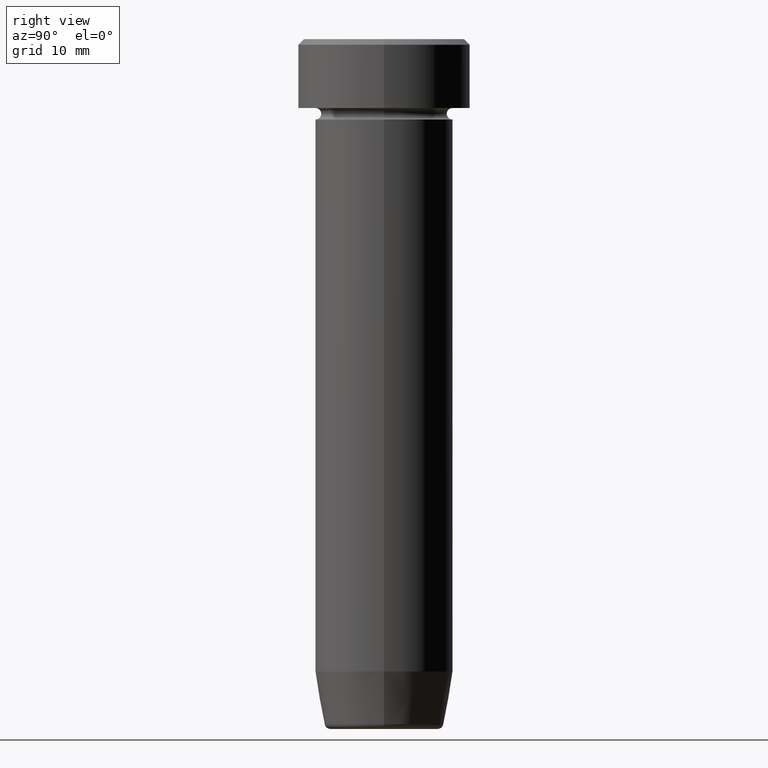
[diagram: clean part render]
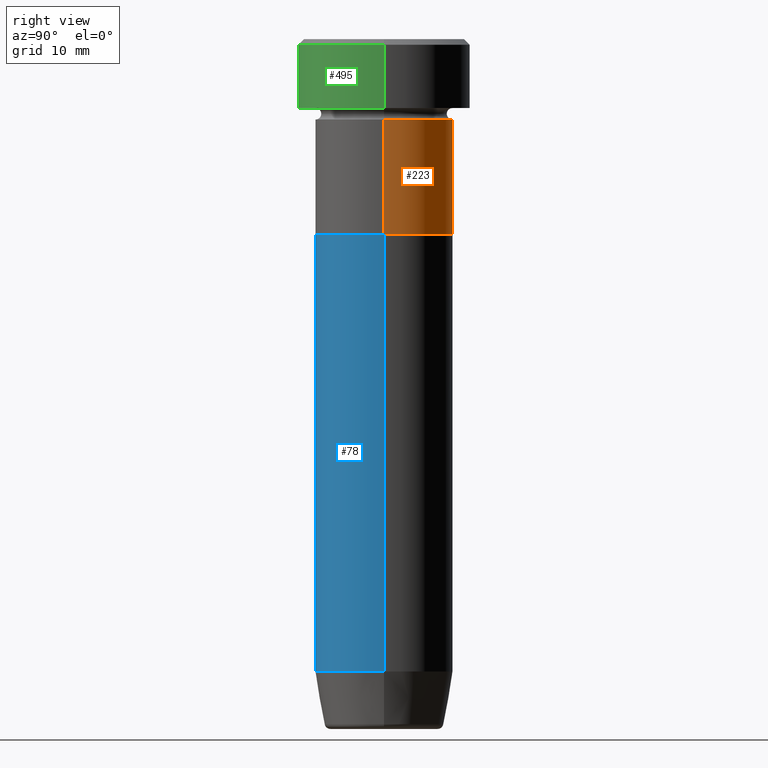
[diagram: same view with three faces highlighted in distinct colors, each labeled with its STEP entity id]
A machine part, right view with three faces highlighted in distinct colors.
Their STEP definitions:

[orange] entity #223 — the highlighted cylindrical surface (partial cylindrical patch) has radius 6 mm, axis along (-0, -0, 1).
#6 = VERTEX_POINT ( 'NONE', #372 ) ;
#12 = CIRCLE ( 'NONE', #39, 6.000000000000000000 ) ;
#18 = ORIENTED_EDGE ( 'NONE', *, *, #215, .F. ) ;
#26 = CYLINDRICAL_SURFACE ( 'NONE', #354, 6.000000000000000000 ) ;
#38 = VECTOR ( 'NONE', #585, 1000.000000000000000 ) ;
#39 = AXIS2_PLACEMENT_3D ( 'NONE', #559, #138, #599 ) ;
#66 = LINE ( 'NONE', #119, #38 ) ;
#74 = FACE_OUTER_BOUND ( 'NONE', #439, .T. ) ;
#92 = VECTOR ( 'NONE', #428, 1000.000000000000000 ) ;
#97 = ORIENTED_EDGE ( 'NONE', *, *, #390, .F. ) ;
#111 = EDGE_CURVE ( 'NONE', #6, #210, #373, .T. ) ;
#119 = CARTESIAN_POINT ( 'NONE',  ( 6.000000000000000000, 0.000000000000000000, 0.000000000000000000 ) ) ;
#134 = CARTESIAN_POINT ( 'NONE',  ( 0.000000000000000000, 0.000000000000000000, -7.000000000000000000 ) ) ;
#138 = DIRECTION ( 'NONE',  ( -0.000000000000000000, -0.000000000000000000, 1.000000000000000000 ) ) ;
#159 = VERTEX_POINT ( 'NONE', #341 ) ;
#210 = VERTEX_POINT ( 'NONE', #369 ) ;
#215 = EDGE_CURVE ( 'NONE', #536, #159, #66, .T. ) ;
#223 = ADVANCED_FACE ( 'NONE', ( #74 ), #26, .T. ) ;
#233 = CARTESIAN_POINT ( 'NONE',  ( 6.000000000000000000, 0.000000000000000000, -17.00000000000000000 ) ) ;
#261 = DIRECTION ( 'NONE',  ( 1.000000000000000000, 0.000000000000000000, 0.000000000000000000 ) ) ;
#341 = CARTESIAN_POINT ( 'NONE',  ( 6.000000000000000000, 0.000000000000000000, -7.000000000000000000 ) ) ;
#352 = EDGE_CURVE ( 'NONE', #536, #6, #12, .T. ) ;
#354 = AXIS2_PLACEMENT_3D ( 'NONE', #411, #577, #363 ) ;
#363 = DIRECTION ( 'NONE',  ( 1.000000000000000000, 0.000000000000000000, 0.000000000000000000 ) ) ;
#369 = CARTESIAN_POINT ( 'NONE',  ( -6.000000000000000000, 7.347880794884119736E-16, -7.000000000000000000 ) ) ;
#372 = CARTESIAN_POINT ( 'NONE',  ( -6.000000000000000000, 7.347880794884119736E-16, -17.00000000000000000 ) ) ;
#373 = LINE ( 'NONE', #504, #92 ) ;
#382 = CIRCLE ( 'NONE', #395, 6.000000000000000000 ) ;
#390 = EDGE_CURVE ( 'NONE', #159, #210, #382, .T. ) ;
#395 = AXIS2_PLACEMENT_3D ( 'NONE', #134, #540, #261 ) ;
#411 = CARTESIAN_POINT ( 'NONE',  ( 0.000000000000000000, 0.000000000000000000, 0.000000000000000000 ) ) ;
#412 = ORIENTED_EDGE ( 'NONE', *, *, #111, .T. ) ;
#428 = DIRECTION ( 'NONE',  ( -0.000000000000000000, -0.000000000000000000, 1.000000000000000000 ) ) ;
#439 = EDGE_LOOP ( 'NONE', ( #572, #412, #97, #18 ) ) ;
#504 = CARTESIAN_POINT ( 'NONE',  ( -6.000000000000000000, 7.347880794884119736E-16, 0.000000000000000000 ) ) ;
#536 = VERTEX_POINT ( 'NONE', #233 ) ;
#540 = DIRECTION ( 'NONE',  ( -0.000000000000000000, -0.000000000000000000, 1.000000000000000000 ) ) ;
#559 = CARTESIAN_POINT ( 'NONE',  ( 0.000000000000000000, 0.000000000000000000, -17.00000000000000000 ) ) ;
#572 = ORIENTED_EDGE ( 'NONE', *, *, #352, .T. ) ;
#577 = DIRECTION ( 'NONE',  ( -0.000000000000000000, -0.000000000000000000, 1.000000000000000000 ) ) ;
#585 = DIRECTION ( 'NONE',  ( -0.000000000000000000, -0.000000000000000000, 1.000000000000000000 ) ) ;
#599 = DIRECTION ( 'NONE',  ( 1.000000000000000000, 0.000000000000000000, 0.000000000000000000 ) ) ;

[blue] entity #78 — the highlighted cylindrical surface (partial cylindrical patch) has radius 6 mm, axis along (-0, -0, 1).
#3 = DIRECTION ( 'NONE',  ( -0.000000000000000000, -0.000000000000000000, 1.000000000000000000 ) ) ;
#17 = VERTEX_POINT ( 'NONE', #58 ) ;
#24 = VECTOR ( 'NONE', #115, 1000.000000000000000 ) ;
#58 = CARTESIAN_POINT ( 'NONE',  ( 6.000000000000000000, 0.000000000000000000, -17.00000000000000000 ) ) ;
#60 = EDGE_CURVE ( 'NONE', #339, #17, #590, .T. ) ;
#78 = ADVANCED_FACE ( 'NONE', ( #552 ), #132, .T. ) ;
#95 = ORIENTED_EDGE ( 'NONE', *, *, #60, .F. ) ;
#115 = DIRECTION ( 'NONE',  ( -0.000000000000000000, -0.000000000000000000, 1.000000000000000000 ) ) ;
#116 = EDGE_LOOP ( 'NONE', ( #334, #192, #408, #95 ) ) ;
#132 = CYLINDRICAL_SURFACE ( 'NONE', #538, 6.000000000000000000 ) ;
#133 = CARTESIAN_POINT ( 'NONE',  ( -6.000000000000000000, 7.347880794884119736E-16, -17.00000000000000000 ) ) ;
#145 = CARTESIAN_POINT ( 'NONE',  ( 6.000000000000000000, 0.000000000000000000, -55.00000000000000000 ) ) ;
#154 = VERTEX_POINT ( 'NONE', #145 ) ;
#171 = EDGE_CURVE ( 'NONE', #290, #154, #548, .T. ) ;
#174 = CARTESIAN_POINT ( 'NONE',  ( 0.000000000000000000, 0.000000000000000000, -17.00000000000000000 ) ) ;
#192 = ORIENTED_EDGE ( 'NONE', *, *, #171, .T. ) ;
#240 = CARTESIAN_POINT ( 'NONE',  ( 0.000000000000000000, 0.000000000000000000, -55.00000000000000000 ) ) ;
#266 = DIRECTION ( 'NONE',  ( -0.000000000000000000, -0.000000000000000000, 1.000000000000000000 ) ) ;
#280 = CARTESIAN_POINT ( 'NONE',  ( 0.000000000000000000, 0.000000000000000000, 0.000000000000000000 ) ) ;
#290 = VERTEX_POINT ( 'NONE', #314 ) ;
#314 = CARTESIAN_POINT ( 'NONE',  ( -6.000000000000000000, 7.347880794884119736E-16, -55.00000000000000000 ) ) ;
#317 = AXIS2_PLACEMENT_3D ( 'NONE', #240, #597, #377 ) ;
#334 = ORIENTED_EDGE ( 'NONE', *, *, #424, .F. ) ;
#339 = VERTEX_POINT ( 'NONE', #133 ) ;
#375 = DIRECTION ( 'NONE',  ( 1.000000000000000000, 0.000000000000000000, 0.000000000000000000 ) ) ;
#377 = DIRECTION ( 'NONE',  ( 1.000000000000000000, 0.000000000000000000, 0.000000000000000000 ) ) ;
#386 = LINE ( 'NONE', #516, #433 ) ;
#394 = DIRECTION ( 'NONE',  ( 1.000000000000000000, 0.000000000000000000, 0.000000000000000000 ) ) ;
#408 = ORIENTED_EDGE ( 'NONE', *, *, #490, .T. ) ;
#424 = EDGE_CURVE ( 'NONE', #290, #339, #386, .T. ) ;
#429 = DIRECTION ( 'NONE',  ( -0.000000000000000000, -0.000000000000000000, 1.000000000000000000 ) ) ;
#433 = VECTOR ( 'NONE', #429, 1000.000000000000000 ) ;
#490 = EDGE_CURVE ( 'NONE', #154, #17, #537, .T. ) ;
#516 = CARTESIAN_POINT ( 'NONE',  ( -6.000000000000000000, 7.347880794884119736E-16, 0.000000000000000000 ) ) ;
#537 = LINE ( 'NONE', #576, #24 ) ;
#538 = AXIS2_PLACEMENT_3D ( 'NONE', #280, #3, #394 ) ;
#548 = CIRCLE ( 'NONE', #317, 6.000000000000000000 ) ;
#552 = FACE_OUTER_BOUND ( 'NONE', #116, .T. ) ;
#567 = AXIS2_PLACEMENT_3D ( 'NONE', #174, #266, #375 ) ;
#576 = CARTESIAN_POINT ( 'NONE',  ( 6.000000000000000000, 0.000000000000000000, 0.000000000000000000 ) ) ;
#590 = CIRCLE ( 'NONE', #567, 6.000000000000000000 ) ;
#597 = DIRECTION ( 'NONE',  ( -0.000000000000000000, -0.000000000000000000, 1.000000000000000000 ) ) ;

[green] entity #495 — the highlighted cylindrical surface (partial cylindrical patch) has radius 7.5 mm, axis along (-0, -0, 1).
#2 = EDGE_LOOP ( 'NONE', ( #96, #515, #476, #63 ) ) ;
#7 = VERTEX_POINT ( 'NONE', #182 ) ;
#8 = EDGE_CURVE ( 'NONE', #565, #295, #83, .T. ) ;
#35 = DIRECTION ( 'NONE',  ( -0.000000000000000000, -0.000000000000000000, 1.000000000000000000 ) ) ;
#42 = CARTESIAN_POINT ( 'NONE',  ( -7.500000000000000000, 9.184850993605147944E-16, 0.000000000000000000 ) ) ;
#48 = EDGE_CURVE ( 'NONE', #565, #172, #520, .T. ) ;
#62 = AXIS2_PLACEMENT_3D ( 'NONE', #349, #162, #528 ) ;
#63 = ORIENTED_EDGE ( 'NONE', *, *, #148, .T. ) ;
#67 = CARTESIAN_POINT ( 'NONE',  ( 0.000000000000000000, 0.000000000000000000, -0.4999999999999987232 ) ) ;
#83 = LINE ( 'NONE', #42, #157 ) ;
#96 = ORIENTED_EDGE ( 'NONE', *, *, #8, .F. ) ;
#124 = DIRECTION ( 'NONE',  ( 1.000000000000000000, 0.000000000000000000, 0.000000000000000000 ) ) ;
#148 = EDGE_CURVE ( 'NONE', #7, #295, #329, .T. ) ;
#151 = CYLINDRICAL_SURFACE ( 'NONE', #62, 7.500000000000000000 ) ;
#157 = VECTOR ( 'NONE', #573, 1000.000000000000000 ) ;
#162 = DIRECTION ( 'NONE',  ( -0.000000000000000000, -0.000000000000000000, 1.000000000000000000 ) ) ;
#172 = VERTEX_POINT ( 'NONE', #380 ) ;
#180 = DIRECTION ( 'NONE',  ( -0.000000000000000000, -0.000000000000000000, 1.000000000000000000 ) ) ;
#182 = CARTESIAN_POINT ( 'NONE',  ( 7.500000000000000000, 0.000000000000000000, -0.4999999999999987232 ) ) ;
#187 = DIRECTION ( 'NONE',  ( 1.000000000000000000, 0.000000000000000000, 0.000000000000000000 ) ) ;
#217 = AXIS2_PLACEMENT_3D ( 'NONE', #67, #284, #187 ) ;
#227 = CARTESIAN_POINT ( 'NONE',  ( 7.500000000000000000, 0.000000000000000000, 0.000000000000000000 ) ) ;
#249 = CARTESIAN_POINT ( 'NONE',  ( -7.500000000000000000, 9.184850993605147944E-16, -6.000000000000000000 ) ) ;
#284 = DIRECTION ( 'NONE',  ( 0.000000000000000000, 0.000000000000000000, -1.000000000000000000 ) ) ;
#295 = VERTEX_POINT ( 'NONE', #413 ) ;
#321 = LINE ( 'NONE', #227, #591 ) ;
#329 = CIRCLE ( 'NONE', #217, 7.500000000000000000 ) ;
#349 = CARTESIAN_POINT ( 'NONE',  ( 0.000000000000000000, 0.000000000000000000, 0.000000000000000000 ) ) ;
#380 = CARTESIAN_POINT ( 'NONE',  ( 7.500000000000000000, 0.000000000000000000, -6.000000000000000000 ) ) ;
#403 = FACE_OUTER_BOUND ( 'NONE', #2, .T. ) ;
#413 = CARTESIAN_POINT ( 'NONE',  ( -7.500000000000000000, 9.184850993605147944E-16, -0.4999999999999987232 ) ) ;
#455 = EDGE_CURVE ( 'NONE', #172, #7, #321, .T. ) ;
#476 = ORIENTED_EDGE ( 'NONE', *, *, #455, .T. ) ;
#495 = ADVANCED_FACE ( 'NONE', ( #403 ), #151, .T. ) ;
#515 = ORIENTED_EDGE ( 'NONE', *, *, #48, .T. ) ;
#520 = CIRCLE ( 'NONE', #595, 7.500000000000000000 ) ;
#528 = DIRECTION ( 'NONE',  ( 1.000000000000000000, 0.000000000000000000, 0.000000000000000000 ) ) ;
#542 = CARTESIAN_POINT ( 'NONE',  ( 0.000000000000000000, 0.000000000000000000, -6.000000000000000000 ) ) ;
#565 = VERTEX_POINT ( 'NONE', #249 ) ;
#573 = DIRECTION ( 'NONE',  ( -0.000000000000000000, -0.000000000000000000, 1.000000000000000000 ) ) ;
#591 = VECTOR ( 'NONE', #180, 1000.000000000000000 ) ;
#595 = AXIS2_PLACEMENT_3D ( 'NONE', #542, #35, #124 ) ;